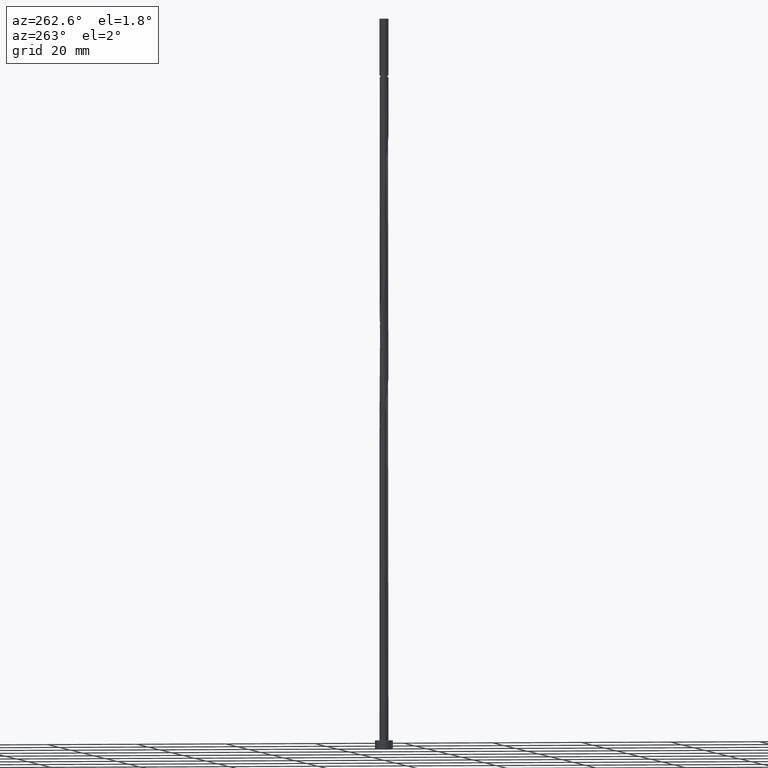
[diagram: clean part render]
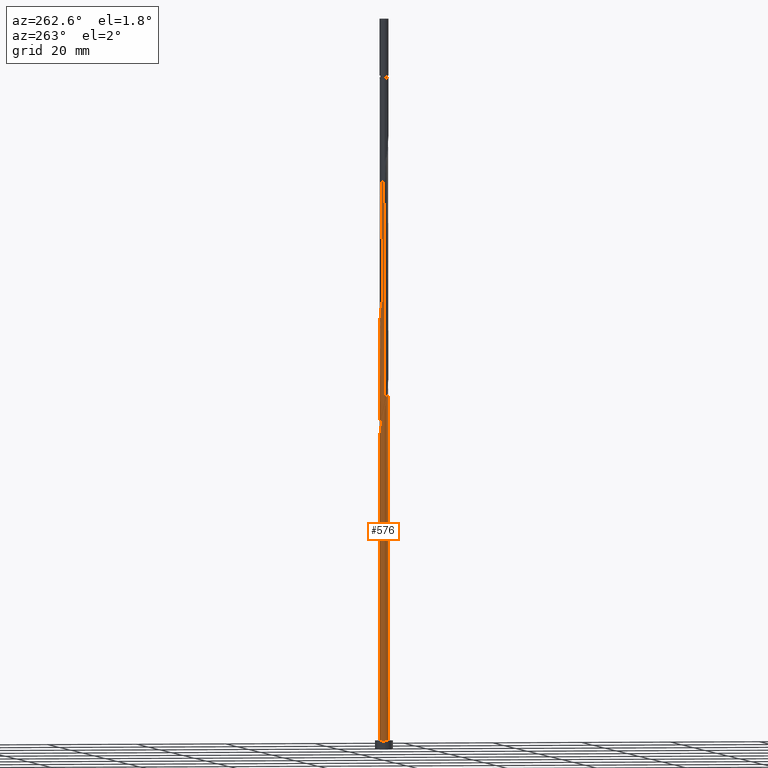
[diagram: same view with one face highlighted and labeled with its STEP entity id]
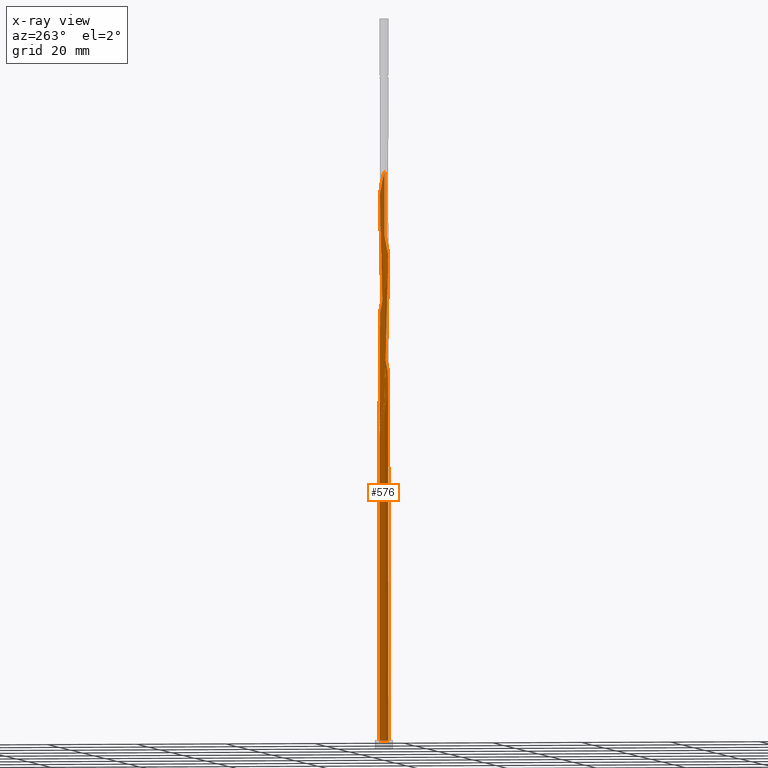
[diagram: x-ray of the same camera — body ghosted, the highlighted face saturated]
A machine part, auxiliary view. The second image highlights one B-rep face of the part: STEP entity #576.
The next image is the same camera in x-ray: the body ghosted, the highlighted face saturated — about 0% of this face is hidden behind the body in this view.
In plain terms, the highlighted cylindrical surface (bore or boss wall) has radius 1 mm, axis along (-0, -0, -1).
Its self-contained STEP definition (entity closure, byte-faithful):
#6 = CARTESIAN_POINT ( 'NONE',  ( 0.6972353404242070951, -0.7168422979034815290, 112.3603273956033490 ) ) ;
#13 = DIRECTION ( 'NONE',  ( -0.000000000000000000, -0.000000000000000000, -1.000000000000000000 ) ) ;
#16 = CARTESIAN_POINT ( 'NONE',  ( -0.1989974874213281120, 0.9800000000000010925, 123.2694183046942271 ) ) ;
#20 = ORIENTED_EDGE ( 'NONE', *, *, #891, .F. ) ;
#22 = EDGE_CURVE ( 'NONE', #35, #573, #38, .T. ) ;
#25 = CARTESIAN_POINT ( 'NONE',  ( -0.8933318736010408267, -0.4718372192107813112, 104.4815395168154453 ) ) ;
#35 = VERTEX_POINT ( 'NONE', #400 ) ;
#38 = CIRCLE ( 'NONE', #920, 1.000000000000000000 ) ;
#39 = CARTESIAN_POINT ( 'NONE',  ( -1.000000000000000000, 0.000000000000000000, 163.0000000000000000 ) ) ;
#58 = AXIS2_PLACEMENT_3D ( 'NONE', #378, #621, #763 ) ;
#75 = DIRECTION ( 'NONE',  ( 1.000000000000000000, 0.000000000000000000, 0.000000000000000000 ) ) ;
#92 = CARTESIAN_POINT ( 'NONE',  ( 0.05809475930625430939, -1.008611519250725896, 82.66335769863361804 ) ) ;
#94 = ORIENTED_EDGE ( 'NONE', *, *, #1481, .T. ) ;
#99 = CARTESIAN_POINT ( 'NONE',  ( -0.4964241347574810947, -0.8799064019851177143, 80.23911527439121016 ) ) ;
#107 = CARTESIAN_POINT ( 'NONE',  ( -1.006613054557666587, 0.08603694682049708997, 102.0572970925730374 ) ) ;
#113 = CARTESIAN_POINT ( 'NONE',  ( 0.4670345966523050119, -0.8842390432059774596, 111.1482061834821167 ) ) ;
#120 = CARTESIAN_POINT ( 'NONE',  ( -0.9900775620072765904, -0.2010438236649818300, 103.2694183046942555 ) ) ;
#126 = CARTESIAN_POINT ( 'NONE',  ( -0.8003017030802063170, 0.6165949901442845382, 126.2997213349972583 ) ) ;
#127 = CIRCLE ( 'NONE', #460, 1.000000000000000000 ) ;
#134 = CARTESIAN_POINT ( 'NONE',  ( -0.9983453082824708114, 0.05750343842224257124, 77.20881224408817900 ) ) ;
#170 = CARTESIAN_POINT ( 'NONE',  ( 0.1989974874213286948, 0.9800000000000006484, 69.93608497136089852 ) ) ;
#196 = CARTESIAN_POINT ( 'NONE',  ( 0.8933318736010409378, 0.4718372192107809782, 91.14820618348214509 ) ) ;
#200 = ORIENTED_EDGE ( 'NONE', *, *, #557, .F. ) ;
#212 = CARTESIAN_POINT ( 'NONE',  ( 0.8087728116229552233, 0.5881211942954475136, 91.75426678954273996 ) ) ;
#218 = CARTESIAN_POINT ( 'NONE',  ( -0.1989974874213282230, 0.9800000000000010925, 69.93608497136089852 ) ) ;
#223 = CARTESIAN_POINT ( 'NONE',  ( 0.1989974874213282230, -0.9800000000000010925, 83.26941830469425554 ) ) ;
#230 = CARTESIAN_POINT ( 'NONE',  ( -0.4964241347574810947, -0.8799064019851177143, 106.9057819410579100 ) ) ;
#238 = CARTESIAN_POINT ( 'NONE',  ( -0.9417047178041585420, -0.3364405214378813902, 103.8754789107548646 ) ) ;
#246 = CARTESIAN_POINT ( 'NONE',  ( -0.08516121475689751585, -0.9963671850784392436, 108.7239637592397088 ) ) ;
#252 = CARTESIAN_POINT ( 'NONE',  ( -0.8709502235331727515, 0.4913712528501442689, 73.57244860772453876 ) ) ;
#254 = CARTESIAN_POINT ( 'NONE',  ( -1.000000000000001332, -6.805353420090921159E-16, 77.45220611732848681 ) ) ;
#262 = DIRECTION ( 'NONE',  ( -1.000000000000000000, 0.000000000000000000, 0.000000000000000000 ) ) ;
#263 = CARTESIAN_POINT ( 'NONE',  ( -0.3399002155364022615, 0.9513884807492761775, 97.20881224408820742 ) ) ;
#269 = CARTESIAN_POINT ( 'NONE',  ( -0.8933318736010404937, 0.4718372192107812002, 75.39063042590635177 ) ) ;
#273 = DIRECTION ( 'NONE',  ( 1.000000000000000000, 0.000000000000000000, 0.000000000000000000 ) ) ;
#281 = CARTESIAN_POINT ( 'NONE',  ( -0.08516121475689737708, 0.9963671850784390216, 71.14820618348211667 ) ) ;
#315 = CARTESIAN_POINT ( 'NONE',  ( 0.9983453082824716995, 0.05750343842224230062, 89.33002436530031787 ) ) ;
#318 = CARTESIAN_POINT ( 'NONE',  ( 0.9417047178041585420, 0.3364405214378812237, 90.54214557742155023 ) ) ;
#326 = VERTEX_POINT ( 'NONE', #1002 ) ;
#328 = ORIENTED_EDGE ( 'NONE', *, *, #1263, .T. ) ;
#349 = CARTESIAN_POINT ( 'NONE',  ( -0.4670345966523052894, 0.8842390432059773486, 97.81487285014878807 ) ) ;
#357 = CARTESIAN_POINT ( 'NONE',  ( 0.8709502235331724185, -0.4913712528501443799, 113.5724486077245388 ) ) ;
#364 = CARTESIAN_POINT ( 'NONE',  ( 0.3624206617887651416, 0.9320146264456353746, 120.8451758804518477 ) ) ;
#373 = CARTESIAN_POINT ( 'NONE',  ( -0.6972353404242070951, 0.7168422979034815290, 125.6936607289366776 ) ) ;
#378 = CARTESIAN_POINT ( 'NONE',  ( 0.000000000000000000, 0.000000000000000000, 69.93608497136088431 ) ) ;
#381 = CARTESIAN_POINT ( 'NONE',  ( -0.8003017030802063170, 0.6165949901442845382, 99.63305466833062951 ) ) ;
#400 = CARTESIAN_POINT ( 'NONE',  ( -1.000000000000000000, 0.000000000000000000, 2.000000000000000000 ) ) ;
#416 = VERTEX_POINT ( 'NONE', #170 ) ;
#418 = LINE ( 'NONE', #39, #1060 ) ;
#438 = CARTESIAN_POINT ( 'NONE',  ( 0.5941689777682083173, -0.8170896056626782977, 85.08760012287605434 ) ) ;
#443 = CARTESIAN_POINT ( 'NONE',  ( 0.4670345966523050119, -0.8842390432059774596, 84.48153951681543106 ) ) ;
#456 = CARTESIAN_POINT ( 'NONE',  ( 0.8709502235331724185, -0.4913712528501443799, 86.90578194105789578 ) ) ;
#460 = AXIS2_PLACEMENT_3D ( 'NONE', #1047, #464, #75 ) ;
#464 = DIRECTION ( 'NONE',  ( 0.000000000000000000, 0.000000000000000000, 1.000000000000000000 ) ) ;
#471 = CARTESIAN_POINT ( 'NONE',  ( 0.5941689777682083173, -0.8170896056626782977, 111.7542667895427257 ) ) ;
#478 = CARTESIAN_POINT ( 'NONE',  ( -0.6103189422011752185, -0.7921557856826156874, 106.2997213349972725 ) ) ;
#480 = EDGE_LOOP ( 'NONE', ( #200, #613, #94, #1470, #328, #729, #20, #807, #755 ) ) ;
#485 = CARTESIAN_POINT ( 'NONE',  ( 0.9417047178041585420, 0.3364405214378812237, 117.2088122440881932 ) ) ;
#491 = CARTESIAN_POINT ( 'NONE',  ( -0.9741058992719026088, 0.2260922311882505864, 128.1179031531790997 ) ) ;
#496 = CARTESIAN_POINT ( 'NONE',  ( 0.000000000000000000, 0.000000000000000000, 163.0000000000000000 ) ) ;
#497 = CARTESIAN_POINT ( 'NONE',  ( -1.000000000000002442, 0.1145289273851184397, 128.6006705390887248 ) ) ;
#502 = CARTESIAN_POINT ( 'NONE',  ( -1.000000000000001776, 0.1145289273851210349, 75.26733720575538200 ) ) ;
#513 = CARTESIAN_POINT ( 'NONE',  ( -0.4964241347574808727, 0.8799064019851173812, 72.96638800166394390 ) ) ;
#557 = EDGE_CURVE ( 'NONE', #1448, #326, #1093, .T. ) ;
#570 = CARTESIAN_POINT ( 'NONE',  ( 0.3624206617887651416, 0.9320146264456353746, 94.17850921378516205 ) ) ;
#573 = VERTEX_POINT ( 'NONE', #1442 ) ;
#576 = ADVANCED_FACE ( 'NONE', ( #968 ), #847, .T. ) ;
#580 = CARTESIAN_POINT ( 'NONE',  ( -0.3624206617887654192, -0.9320146264456353746, 80.84517588045184766 ) ) ;
#584 = CARTESIAN_POINT ( 'NONE',  ( 0.2284171888200494660, 0.9841228509061530350, 121.4512364865123999 ) ) ;
#592 = CARTESIAN_POINT ( 'NONE',  ( 0.4964241347574807617, 0.8799064019851177143, 120.2391152743911817 ) ) ;
#601 = CARTESIAN_POINT ( 'NONE',  ( -0.3624206617887654192, -0.9320146264456353746, 107.5118425471185049 ) ) ;
#602 = EDGE_CURVE ( 'NONE', #1262, #416, #631, .T. ) ;
#604 =( BOUNDED_CURVE ( )  B_SPLINE_CURVE ( 2, ( #254, #734, #134, #864, #1334, #269, #907, #1128, #1341, #513, #768, #1492, #281, #650, #748 ),
 .UNSPECIFIED., .F., .T. ) 
 B_SPLINE_CURVE_WITH_KNOTS ( ( 3, 2, 2, 2, 2, 2, 2, 3 ),
 ( 0.9295252162417509956, 0.9318181818181817677, 0.9431818181818182323, 0.9545454545454545858, 0.9659090909090909394, 0.9772727272727272929, 0.9886363636363636465, 1.000000000000000000 ),
 .UNSPECIFIED. ) 
 CURVE ( )  GEOMETRIC_REPRESENTATION_ITEM ( )  RATIONAL_B_SPLINE_CURVE ( ( 0.9061101570135532413, 0.9072237824201354606, 0.9090909090909131685, 0.8998376744372155178, 0.9090909090909131685, 0.8998376744372155178, 0.9090909090909131685, 0.8998376744372155178, 0.9090909090909131685, 0.8998376744372155178, 0.9090909090909131685, 0.8998376744372155178, 0.9090909090909131685, 0.8998376744372155178, 0.9090909090909131685 ) ) 
 REPRESENTATION_ITEM ( '' )  );
#608 = CARTESIAN_POINT ( 'NONE',  ( -0.9415987439861389641, 0.3661475155560040551, 127.5118425471184764 ) ) ;
#613 = ORIENTED_EDGE ( 'NONE', *, *, #1366, .F. ) ;
#617 = CARTESIAN_POINT ( 'NONE',  ( 0.9415987439861391861, -0.3661475155560037220, 114.1785092137851194 ) ) ;
#621 = DIRECTION ( 'NONE',  ( 0.000000000000000000, 0.000000000000000000, -1.000000000000000000 ) ) ;
#623 = CARTESIAN_POINT ( 'NONE',  ( -0.3399002155364022615, 0.9513884807492761775, 70.54214557742150760 ) ) ;
#631 = CIRCLE ( 'NONE', #58, 1.000000000000000000 ) ;
#633 = DIRECTION ( 'NONE',  ( -0.000000000000000000, -0.000000000000000000, -1.000000000000000000 ) ) ;
#650 = CARTESIAN_POINT ( 'NONE',  ( 0.05809475930625434409, 1.008611519250725230, 70.54214557742152181 ) ) ;
#682 = CARTESIAN_POINT ( 'NONE',  ( -0.6103189422011752185, -0.7921557856826156874, 79.63305466833061530 ) ) ;
#688 = CARTESIAN_POINT ( 'NONE',  ( 1.006613054557666587, -0.08603694682049706222, 88.72396375923969458 ) ) ;
#695 = CARTESIAN_POINT ( 'NONE',  ( -1.000000000000001776, -0.02877552652382451767, 75.87539516344489243 ) ) ;
#697 =( BOUNDED_CURVE ( )  B_SPLINE_CURVE ( 2, ( #1148, #623, #985, #1280, #1071, #969, #252, #1270, #1155, #502, #1457 ),
 .UNSPECIFIED., .F., .T. ) 
 B_SPLINE_CURVE_WITH_KNOTS ( ( 3, 2, 2, 2, 2, 3 ),
 ( 0.000000000000000000, 0.01136363636363635354, 0.02272727272727270709, 0.03409090909090906063, 0.04545454545454541417, 0.05452521624175114129 ),
 .UNSPECIFIED. ) 
 CURVE ( )  GEOMETRIC_REPRESENTATION_ITEM ( )  RATIONAL_B_SPLINE_CURVE ( ( 0.9090909090909253809, 0.8998376744372276193, 0.9090909090909253809, 0.8998376744372276193, 0.9090909090909253809, 0.8998376744372276193, 0.9090909090909253809, 0.8998376744372276193, 0.9090909090909253809, 0.9017048011080052161, 0.9061101570135656758 ) ) 
 REPRESENTATION_ITEM ( '' )  );
#711 = CARTESIAN_POINT ( 'NONE',  ( -0.5941689777682083173, 0.8170896056626784087, 125.0876001228760686 ) ) ;
#718 = CARTESIAN_POINT ( 'NONE',  ( -0.8709502235331727515, 0.4913712528501442689, 100.2391152743912102 ) ) ;
#726 = CARTESIAN_POINT ( 'NONE',  ( -0.3399002155364022615, 0.9513884807492761775, 123.8754789107548362 ) ) ;
#729 = ORIENTED_EDGE ( 'NONE', *, *, #1481, .F. ) ;
#734 = CARTESIAN_POINT ( 'NONE',  ( -1.000000000000001554, 0.02877552652382282458, 77.33010811261026163 ) ) ;
#740 = CARTESIAN_POINT ( 'NONE',  ( -1.000000000000000000, 0.000000000000000000, 163.0000000000000000 ) ) ;
#748 = CARTESIAN_POINT ( 'NONE',  ( 0.1989974874213286948, 0.9800000000000006484, 69.93608497136089852 ) ) ;
#755 = ORIENTED_EDGE ( 'NONE', *, *, #1388, .F. ) ;
#763 = DIRECTION ( 'NONE',  ( -1.000000000000000000, 0.000000000000000000, 0.000000000000000000 ) ) ;
#768 = CARTESIAN_POINT ( 'NONE',  ( -0.3624206617887649751, 0.9320146264456348195, 72.36032739560332061 ) ) ;
#798 = CARTESIAN_POINT ( 'NONE',  ( 0.9900775620072765904, 0.2010438236649816635, 89.93608497136091273 ) ) ;
#801 = CARTESIAN_POINT ( 'NONE',  ( 0.7242137496448697309, 0.7044051693801136604, 92.36032739560333482 ) ) ;
#807 = ORIENTED_EDGE ( 'NONE', *, *, #602, .T. ) ;
#811 = CARTESIAN_POINT ( 'NONE',  ( -0.9417047178041585420, -0.3364405214378813902, 77.20881224408819321 ) ) ;
#825 = CARTESIAN_POINT ( 'NONE',  ( 0.9983453082824716995, 0.05750343842224230062, 115.9966910319670035 ) ) ;
#835 = CARTESIAN_POINT ( 'NONE',  ( 0.9900775620072765904, 0.2010438236649816635, 116.6027516380275983 ) ) ;
#840 = CARTESIAN_POINT ( 'NONE',  ( 0.08516121475689758524, 0.9963671850784392436, 122.0572970925730090 ) ) ;
#847 = CYLINDRICAL_SURFACE ( 'NONE', #1056, 1.000000000000000000 ) ;
#851 = CARTESIAN_POINT ( 'NONE',  ( -1.000000000000001998, -5.683591867328604570E-16, 129.0866304920600385 ) ) ;
#860 =( BOUNDED_CURVE ( )  B_SPLINE_CURVE ( 2, ( #1172, #695, #1034, #1274, #811, #1510, #1394, #1291, #682, #99, #580, #1297, #1516, #92, #223, #1025, #443, #438, #1523, #1387, #456, #937, #1408, #688, #315, #798, #318, #196, #212, #801, #929, #1400, #570, #1198, #977, #1453, #959, #263, #349, #1064, #1185, #381, #718, #1089, #1193, #107, #1206, #120, #238, #25, #1431, #971, #478, #230, #601, #1214, #246, #1079, #1445, #1541, #113, #471, #6, #1073, #357, #617, #1303, #1095, #825, #835, #485, #1308, #964, #1437, #948, #592, #364, #584, #840, #1318, #16, #726, #1424, #711, #373, #126, #1535, #608, #491, #497, #851 ),
 .UNSPECIFIED., .F., .T. ) 
 B_SPLINE_CURVE_WITH_KNOTS ( ( 3, 2, 2, 2, 2, 2, 2, 2, 2, 2, 2, 2, 2, 2, 2, 2, 2, 2, 2, 2, 2, 2, 2, 2, 2, 2, 2, 2, 2, 2, 2, 2, 2, 2, 2, 2, 2, 2, 2, 2, 2, 2, 2, 2, 2, 3 ),
 ( 0.05452521624175114129, 0.05681818181818176772, 0.06818181818181823228, 0.07954545454545458583, 0.09090909090909093937, 0.1022727272727272929, 0.1136363636363636465, 0.1250000000000000000, 0.1363636363636363535, 0.1477272727272727071, 0.1590909090909090606, 0.1704545454545454142, 0.1818181818181817677, 0.1931818181818182323, 0.2045454545454545858, 0.2159090909090909394, 0.2272727272727272929, 0.2386363636363636465, 0.2500000000000000000, 0.2613636363636363535, 0.2727272727272727071, 0.2840909090909090606, 0.2954545454545454142, 0.3068181818181817677, 0.3181818181818182323, 0.3295454545454545858, 0.3409090909090909394, 0.3522727272727272929, 0.3636363636363636465, 0.3750000000000000000, 0.3863636363636363535, 0.3977272727272727071, 0.4090909090909090606, 0.4204545454545454142, 0.4318181818181817677, 0.4431818181818182323, 0.4545454545454545858, 0.4659090909090909394, 0.4772727272727272929, 0.4886363636363636465, 0.5000000000000000000, 0.5113636363636363535, 0.5227272727272727071, 0.5340909090909091717, 0.5454545454545454142, 0.5545252162417514397 ),
 .UNSPECIFIED. ) 
 CURVE ( )  GEOMETRIC_REPRESENTATION_ITEM ( )  RATIONAL_B_SPLINE_CURVE ( ( 0.9061101570135656758, 0.9072237824201477840, 0.9090909090909253809, 0.8998376744372276193, 0.9090909090909253809, 0.8998376744372276193, 0.9090909090909253809, 0.8998376744372276193, 0.9090909090909253809, 0.8998376744372276193, 0.9090909090909253809, 0.8998376744372276193, 0.9090909090909253809, 0.8998376744372276193, 0.9090909090909253809, 0.8998376744372276193, 0.9090909090909253809, 0.8998376744372276193, 0.9090909090909253809, 0.8998376744372276193, 0.9090909090909253809, 0.8998376744372276193, 0.9090909090909253809, 0.8998376744372276193, 0.9090909090909253809, 0.8998376744372276193, 0.9090909090909253809, 0.8998376744372276193, 0.9090909090909253809, 0.8998376744372276193, 0.9090909090909253809, 0.8998376744372276193, 0.9090909090909253809, 0.8998376744372276193, 0.9090909090909253809, 0.8998376744372276193, 0.9090909090909253809, 0.8998376744372276193, 0.9090909090909253809, 0.8998376744372276193, 0.9090909090909253809, 0.8998376744372276193, 0.9090909090909253809, 0.8998376744372276193, 0.9090909090909253809, 0.8998376744372276193, 0.9090909090909253809, 0.8998376744372276193, 0.9090909090909253809, 0.8998376744372276193, 0.9090909090909253809, 0.8998376744372276193, 0.9090909090909253809, 0.8998376744372276193, 0.9090909090909253809, 0.8998376744372276193, 0.9090909090909253809, 0.8998376744372276193, 0.9090909090909253809, 0.8998376744372276193, 0.9090909090909253809, 0.8998376744372276193, 0.9090909090909253809, 0.8998376744372276193, 0.9090909090909253809, 0.8998376744372276193, 0.9090909090909253809, 0.8998376744372276193, 0.9090909090909253809, 0.8998376744372276193, 0.9090909090909253809, 0.8998376744372276193, 0.9090909090909253809, 0.8998376744372276193, 0.9090909090909253809, 0.8998376744372276193, 0.9090909090909253809, 0.8998376744372276193, 0.9090909090909253809, 0.8998376744372276193, 0.9090909090909253809, 0.8998376744372276193, 0.9090909090909253809, 0.8998376744372276193, 0.9090909090909253809, 0.8998376744372276193, 0.9090909090909253809, 0.8998376744372276193, 0.9090909090909253809, 0.9017048011080051051, 0.9061101570135656758 ) ) 
 REPRESENTATION_ITEM ( '' )  );
#864 = CARTESIAN_POINT ( 'NONE',  ( -0.9900775620072762573, 0.2010438236649818855, 76.60275163802759835 ) ) ;
#891 = EDGE_CURVE ( 'NONE', #1262, #1066, #697, .T. ) ;
#892 = VECTOR ( 'NONE', #13, 1000.000000000000000 ) ;
#907 = CARTESIAN_POINT ( 'NONE',  ( -0.8087728116229545572, 0.5881211942954474026, 74.78456981984575691 ) ) ;
#920 = AXIS2_PLACEMENT_3D ( 'NONE', #1208, #1082, #273 ) ;
#929 = CARTESIAN_POINT ( 'NONE',  ( 0.6103189422011752185, 0.7921557856826161315, 92.96638800166395811 ) ) ;
#937 = CARTESIAN_POINT ( 'NONE',  ( 0.9415987439861391861, -0.3661475155560037220, 87.51184254711846222 ) ) ;
#948 = CARTESIAN_POINT ( 'NONE',  ( 0.6103189422011752185, 0.7921557856826161315, 119.6330546683306295 ) ) ;
#959 = CARTESIAN_POINT ( 'NONE',  ( -0.1989974874213281120, 0.9800000000000010925, 96.60275163802759835 ) ) ;
#964 = CARTESIAN_POINT ( 'NONE',  ( 0.8087728116229552233, 0.5881211942954475136, 118.4209334562094114 ) ) ;
#968 = FACE_OUTER_BOUND ( 'NONE', #480, .T. ) ;
#969 = CARTESIAN_POINT ( 'NONE',  ( -0.8003017030802063170, 0.6165949901442845382, 72.96638800166394390 ) ) ;
#971 = CARTESIAN_POINT ( 'NONE',  ( -0.7242137496448691758, -0.7044051693801139935, 105.6936607289366492 ) ) ;
#977 = CARTESIAN_POINT ( 'NONE',  ( 0.08516121475689758524, 0.9963671850784392436, 95.39063042590636599 ) ) ;
#985 = CARTESIAN_POINT ( 'NONE',  ( -0.4670345966523052894, 0.8842390432059773486, 71.14820618348213088 ) ) ;
#1002 = CARTESIAN_POINT ( 'NONE',  ( -1.000000000000001332, -6.805353420090921159E-16, 77.45220611732848681 ) ) ;
#1025 = CARTESIAN_POINT ( 'NONE',  ( 0.3399002155364020950, -0.9513884807492761775, 83.87547891075483619 ) ) ;
#1034 = CARTESIAN_POINT ( 'NONE',  ( -0.9983453082824716995, -0.05750343842224243940, 75.99669103196696085 ) ) ;
#1047 = CARTESIAN_POINT ( 'NONE',  ( 0.000000000000000000, 0.000000000000000000, 2.000000000000000000 ) ) ;
#1056 = AXIS2_PLACEMENT_3D ( 'NONE', #496, #1450, #262 ) ;
#1060 = VECTOR ( 'NONE', #633, 1000.000000000000000 ) ;
#1064 = CARTESIAN_POINT ( 'NONE',  ( -0.5941689777682083173, 0.8170896056626784087, 98.42093345620941136 ) ) ;
#1066 = VERTEX_POINT ( 'NONE', #1140 ) ;
#1071 = CARTESIAN_POINT ( 'NONE',  ( -0.6972353404242070951, 0.7168422979034815290, 72.36032739560332061 ) ) ;
#1073 = CARTESIAN_POINT ( 'NONE',  ( 0.8003017030802062060, -0.6165949901442845382, 112.9663880016639439 ) ) ;
#1079 = CARTESIAN_POINT ( 'NONE',  ( 0.05809475930625430939, -1.008611519250725896, 109.3300243653003179 ) ) ;
#1082 = DIRECTION ( 'NONE',  ( 0.000000000000000000, 0.000000000000000000, 1.000000000000000000 ) ) ;
#1089 = CARTESIAN_POINT ( 'NONE',  ( -0.9415987439861389641, 0.3661475155560040551, 100.8451758804518192 ) ) ;
#1093 = LINE ( 'NONE', #740, #892 ) ;
#1095 = CARTESIAN_POINT ( 'NONE',  ( 1.006613054557666587, -0.08603694682049706222, 115.3906304259063944 ) ) ;
#1128 = CARTESIAN_POINT ( 'NONE',  ( -0.7242137496448689538, 0.7044051693801141045, 74.17850921378516205 ) ) ;
#1140 = CARTESIAN_POINT ( 'NONE',  ( -1.000000000000001776, 8.226251386922981829E-16, 75.75329715872666725 ) ) ;
#1148 = CARTESIAN_POINT ( 'NONE',  ( -0.1989974874213282230, 0.9800000000000010925, 69.93608497136089852 ) ) ;
#1155 = CARTESIAN_POINT ( 'NONE',  ( -0.9741058992719026088, 0.2260922311882505864, 74.78456981984578533 ) ) ;
#1172 = CARTESIAN_POINT ( 'NONE',  ( -1.000000000000001776, 8.226251386922982815E-16, 75.75329715872665304 ) ) ;
#1185 = CARTESIAN_POINT ( 'NONE',  ( -0.6972353404242070951, 0.7168422979034815290, 99.02699406227002044 ) ) ;
#1193 = CARTESIAN_POINT ( 'NONE',  ( -0.9741058992719026088, 0.2260922311882505864, 101.4512364865124141 ) ) ;
#1198 = CARTESIAN_POINT ( 'NONE',  ( 0.2284171888200494660, 0.9841228509061530350, 94.78456981984577112 ) ) ;
#1206 = CARTESIAN_POINT ( 'NONE',  ( -0.9983453082824716995, -0.05750343842224243940, 102.6633576986336607 ) ) ;
#1208 = CARTESIAN_POINT ( 'NONE',  ( 0.000000000000000000, 0.000000000000000000, 2.000000000000000000 ) ) ;
#1214 = CARTESIAN_POINT ( 'NONE',  ( -0.2284171888200492995, -0.9841228509061530350, 108.1179031531791139 ) ) ;
#1262 = VERTEX_POINT ( 'NONE', #218 ) ;
#1263 = EDGE_CURVE ( 'NONE', #573, #35, #127, .T. ) ;
#1270 = CARTESIAN_POINT ( 'NONE',  ( -0.9415987439861389641, 0.3661475155560040551, 74.17850921378517626 ) ) ;
#1274 = CARTESIAN_POINT ( 'NONE',  ( -0.9900775620072765904, -0.2010438236649818300, 76.60275163802758414 ) ) ;
#1280 = CARTESIAN_POINT ( 'NONE',  ( -0.5941689777682083173, 0.8170896056626784087, 71.75426678954272575 ) ) ;
#1291 = CARTESIAN_POINT ( 'NONE',  ( -0.7242137496448691758, -0.7044051693801139935, 79.02699406227000622 ) ) ;
#1297 = CARTESIAN_POINT ( 'NONE',  ( -0.2284171888200492995, -0.9841228509061530350, 81.45123648651241410 ) ) ;
#1303 = CARTESIAN_POINT ( 'NONE',  ( 0.9741058992719027199, -0.2260922311882504754, 114.7845698198457711 ) ) ;
#1308 = CARTESIAN_POINT ( 'NONE',  ( 0.8933318736010409378, 0.4718372192107809782, 117.8148728501487739 ) ) ;
#1318 = CARTESIAN_POINT ( 'NONE',  ( -0.05809475930625415674, 1.008611519250725896, 122.6633576986336180 ) ) ;
#1334 = CARTESIAN_POINT ( 'NONE',  ( -0.9417047178041579869, 0.3364405214378813347, 75.99669103196697506 ) ) ;
#1341 = CARTESIAN_POINT ( 'NONE',  ( -0.6103189422011747745, 0.7921557856826154653, 73.57244860772455297 ) ) ;
#1366 = EDGE_CURVE ( 'NONE', #1066, #1448, #860, .T. ) ;
#1387 = CARTESIAN_POINT ( 'NONE',  ( 0.8003017030802062060, -0.6165949901442845382, 86.29972133499727249 ) ) ;
#1388 = EDGE_CURVE ( 'NONE', #326, #416, #604, .T. ) ;
#1394 = CARTESIAN_POINT ( 'NONE',  ( -0.8087728116229551123, -0.5881211942954477356, 78.42093345620936873 ) ) ;
#1400 = CARTESIAN_POINT ( 'NONE',  ( 0.4964241347574807617, 0.8799064019851177143, 93.57244860772455297 ) ) ;
#1408 = CARTESIAN_POINT ( 'NONE',  ( 0.9741058992719027199, -0.2260922311882504754, 88.11790315317907130 ) ) ;
#1424 = CARTESIAN_POINT ( 'NONE',  ( -0.4670345966523052894, 0.8842390432059773486, 124.4815395168154737 ) ) ;
#1431 = CARTESIAN_POINT ( 'NONE',  ( -0.8087728116229551123, -0.5881211942954477356, 105.0876001228760686 ) ) ;
#1437 = CARTESIAN_POINT ( 'NONE',  ( 0.7242137496448697309, 0.7044051693801136604, 119.0269940622699778 ) ) ;
#1442 = CARTESIAN_POINT ( 'NONE',  ( 1.000000000000000000, 0.000000000000000000, 2.000000000000000000 ) ) ;
#1445 = CARTESIAN_POINT ( 'NONE',  ( 0.1989974874213282230, -0.9800000000000010925, 109.9360849713608843 ) ) ;
#1448 = VERTEX_POINT ( 'NONE', #1475 ) ;
#1450 = DIRECTION ( 'NONE',  ( -0.000000000000000000, -0.000000000000000000, -1.000000000000000000 ) ) ;
#1453 = CARTESIAN_POINT ( 'NONE',  ( -0.05809475930625415674, 1.008611519250725896, 95.99669103196697506 ) ) ;
#1457 = CARTESIAN_POINT ( 'NONE',  ( -1.000000000000001776, 8.226251386922982815E-16, 75.75329715872665304 ) ) ;
#1470 = ORIENTED_EDGE ( 'NONE', *, *, #22, .T. ) ;
#1475 = CARTESIAN_POINT ( 'NONE',  ( -1.000000000000001998, -5.683591867328604570E-16, 129.0866304920600385 ) ) ;
#1481 = EDGE_CURVE ( 'NONE', #1066, #35, #418, .T. ) ;
#1492 = CARTESIAN_POINT ( 'NONE',  ( -0.2284171888200492717, 0.9841228509061528129, 71.75426678954273996 ) ) ;
#1510 = CARTESIAN_POINT ( 'NONE',  ( -0.8933318736010408267, -0.4718372192107813112, 77.81487285014875965 ) ) ;
#1516 = CARTESIAN_POINT ( 'NONE',  ( -0.08516121475689751585, -0.9963671850784392436, 82.05729709257303739 ) ) ;
#1523 = CARTESIAN_POINT ( 'NONE',  ( 0.6972353404242070951, -0.7168422979034815290, 85.69366072893667763 ) ) ;
#1535 = CARTESIAN_POINT ( 'NONE',  ( -0.8709502235331727515, 0.4913712528501442689, 126.9057819410578958 ) ) ;
#1541 = CARTESIAN_POINT ( 'NONE',  ( 0.3399002155364020950, -0.9513884807492761775, 110.5421455774215218 ) ) ;